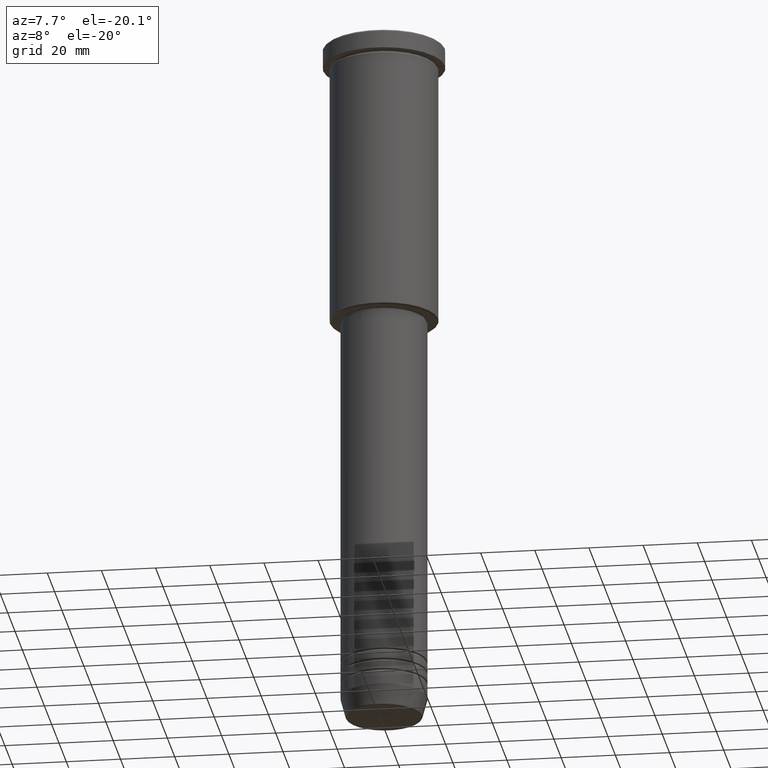
[diagram: clean part render]
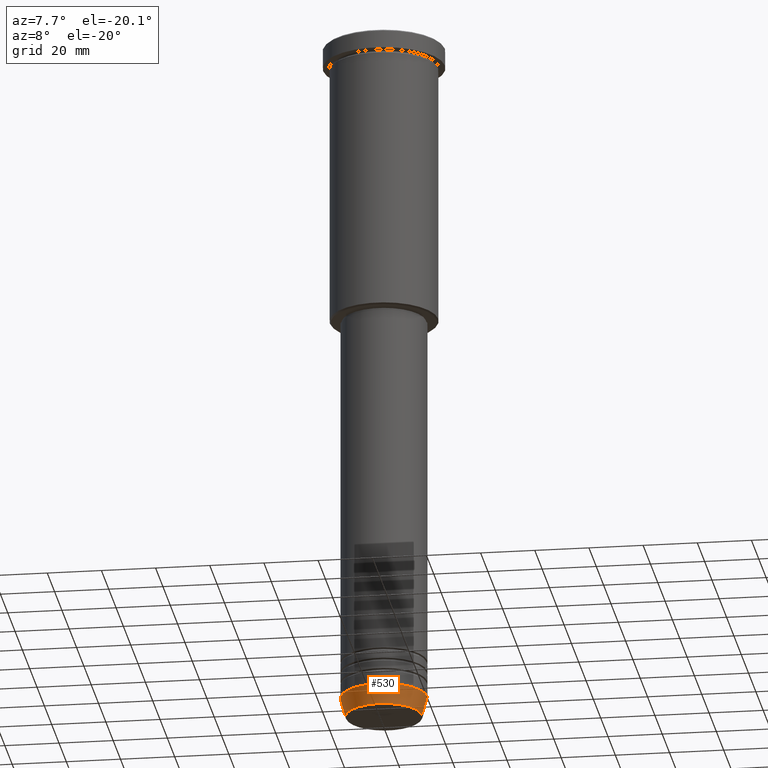
[diagram: same view with one face highlighted and labeled with its STEP entity id]
A machine part, auxiliary view. The second image highlights one B-rep face of the part: STEP entity #530.
In plain terms, the highlighted conical surface has half-angle 15 deg.
Its self-contained STEP definition (entity closure, byte-faithful):
#12 = CARTESIAN_POINT ( 'NONE',  ( 16.00000000000000000, 0.000000000000000000, -252.5000000000000000 ) ) ;
#22 = CARTESIAN_POINT ( 'NONE',  ( -14.08968047592161632, 1.842461544110200874E-15, -259.6294095225512706 ) ) ;
#63 = VERTEX_POINT ( 'NONE', #22 ) ;
#67 = AXIS2_PLACEMENT_3D ( 'NONE', #538, #899, #285 ) ;
#78 = FACE_OUTER_BOUND ( 'NONE', #536, .T. ) ;
#103 = VECTOR ( 'NONE', #259, 1000.000000000000000 ) ;
#127 = CARTESIAN_POINT ( 'NONE',  ( 14.08968047592161632, 0.000000000000000000, -259.6294095225512706 ) ) ;
#176 = DIRECTION ( 'NONE',  ( 1.000000000000000000, 0.000000000000000000, 0.000000000000000000 ) ) ;
#180 = CARTESIAN_POINT ( 'NONE',  ( 0.000000000000000000, 0.000000000000000000, -252.5000000000000000 ) ) ;
#195 = CARTESIAN_POINT ( 'NONE',  ( -16.00000000000000000, 1.959434878635765131E-15, -252.5000000000000000 ) ) ;
#259 = DIRECTION ( 'NONE',  ( 0.2588190451025213501, 0.000000000000000000, 0.9659258262890680902 ) ) ;
#276 = ORIENTED_EDGE ( 'NONE', *, *, #601, .F. ) ;
#283 = CIRCLE ( 'NONE', #487, 14.08968047592161632 ) ;
#285 = DIRECTION ( 'NONE',  ( 1.000000000000000000, 0.000000000000000000, 0.000000000000000000 ) ) ;
#464 = DIRECTION ( 'NONE',  ( 1.000000000000000000, 0.000000000000000000, 0.000000000000000000 ) ) ;
#481 = DIRECTION ( 'NONE',  ( -0.2588190451025213501, 3.169619151431772337E-17, 0.9659258262890680902 ) ) ;
#487 = AXIS2_PLACEMENT_3D ( 'NONE', #631, #1003, #176 ) ;
#529 = EDGE_CURVE ( 'NONE', #703, #890, #587, .T. ) ;
#530 = ADVANCED_FACE ( 'NONE', ( #78 ), #969, .T. ) ;
#536 = EDGE_LOOP ( 'NONE', ( #276, #749, #957, #626 ) ) ;
#538 = CARTESIAN_POINT ( 'NONE',  ( 0.000000000000000000, 0.000000000000000000, -252.5000000000000000 ) ) ;
#542 = EDGE_CURVE ( 'NONE', #1085, #890, #824, .T. ) ;
#543 = DIRECTION ( 'NONE',  ( -0.000000000000000000, -0.000000000000000000, 1.000000000000000000 ) ) ;
#587 = CIRCLE ( 'NONE', #67, 16.00000000000000000 ) ;
#601 = EDGE_CURVE ( 'NONE', #63, #703, #832, .T. ) ;
#626 = ORIENTED_EDGE ( 'NONE', *, *, #529, .F. ) ;
#631 = CARTESIAN_POINT ( 'NONE',  ( 0.000000000000000000, 0.000000000000000000, -259.6294095225512706 ) ) ;
#703 = VERTEX_POINT ( 'NONE', #195 ) ;
#749 = ORIENTED_EDGE ( 'NONE', *, *, #897, .T. ) ;
#767 = CARTESIAN_POINT ( 'NONE',  ( -16.00000000000000000, 1.959434878635765131E-15, -252.5000000000000000 ) ) ;
#779 = AXIS2_PLACEMENT_3D ( 'NONE', #180, #543, #464 ) ;
#824 = LINE ( 'NONE', #12, #103 ) ;
#832 = LINE ( 'NONE', #767, #1123 ) ;
#890 = VERTEX_POINT ( 'NONE', #1098 ) ;
#897 = EDGE_CURVE ( 'NONE', #63, #1085, #283, .T. ) ;
#899 = DIRECTION ( 'NONE',  ( -0.000000000000000000, -0.000000000000000000, 1.000000000000000000 ) ) ;
#957 = ORIENTED_EDGE ( 'NONE', *, *, #542, .T. ) ;
#969 = CONICAL_SURFACE ( 'NONE', #779, 16.00000000000000000, 0.2617993877991500740 ) ;
#1003 = DIRECTION ( 'NONE',  ( -0.000000000000000000, -0.000000000000000000, 1.000000000000000000 ) ) ;
#1085 = VERTEX_POINT ( 'NONE', #127 ) ;
#1098 = CARTESIAN_POINT ( 'NONE',  ( 16.00000000000000000, 0.000000000000000000, -252.5000000000000000 ) ) ;
#1123 = VECTOR ( 'NONE', #481, 1000.000000000000000 ) ;